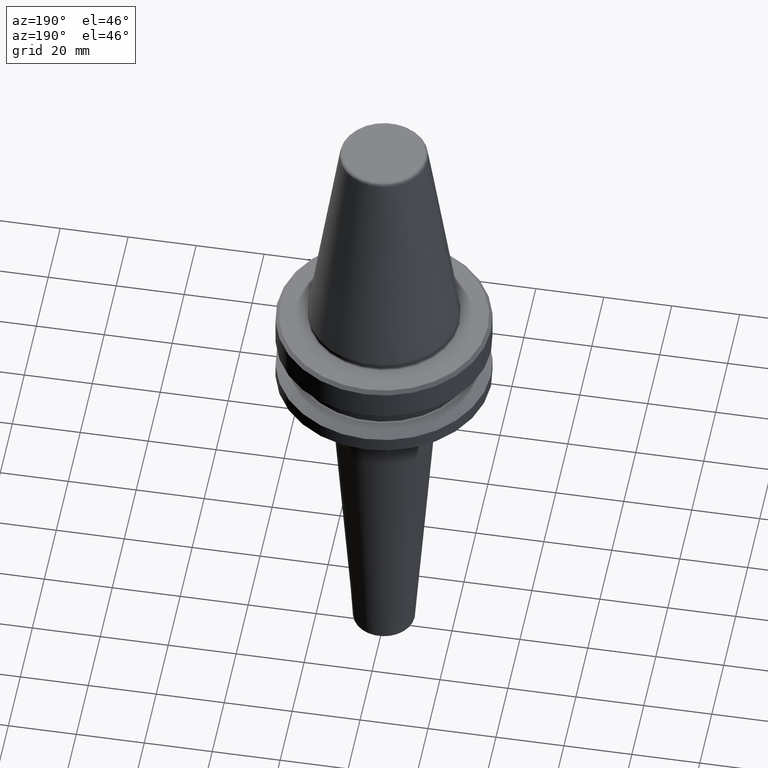
[diagram: clean part render]
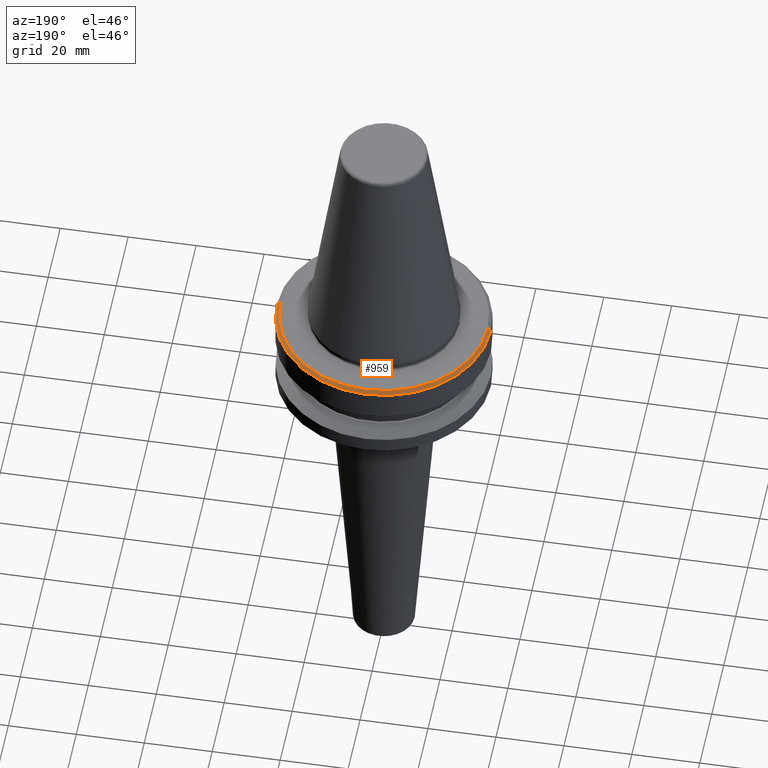
[diagram: same view with one face highlighted and labeled with its STEP entity id]
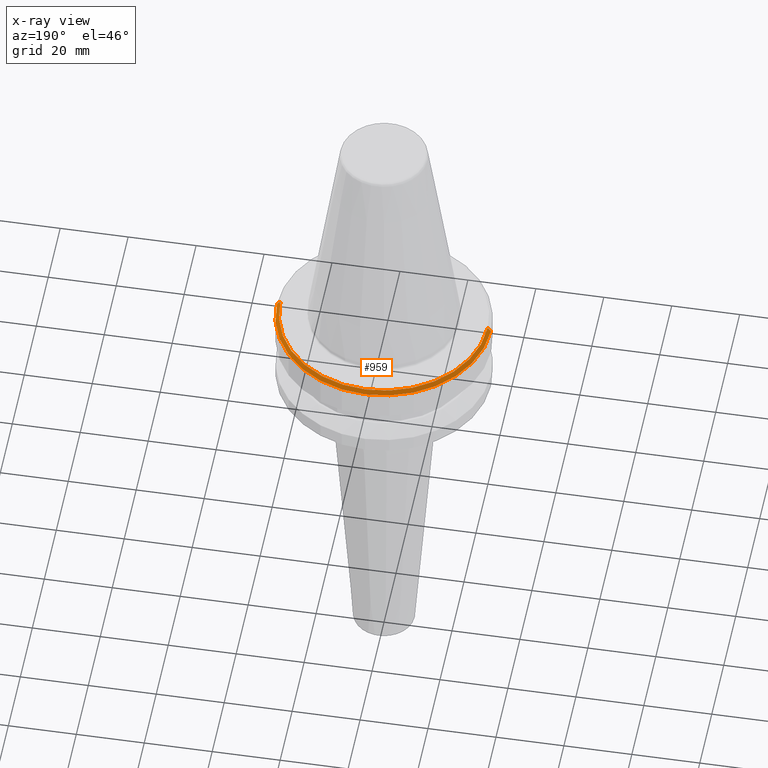
[diagram: x-ray of the same camera — body ghosted, the highlighted face saturated]
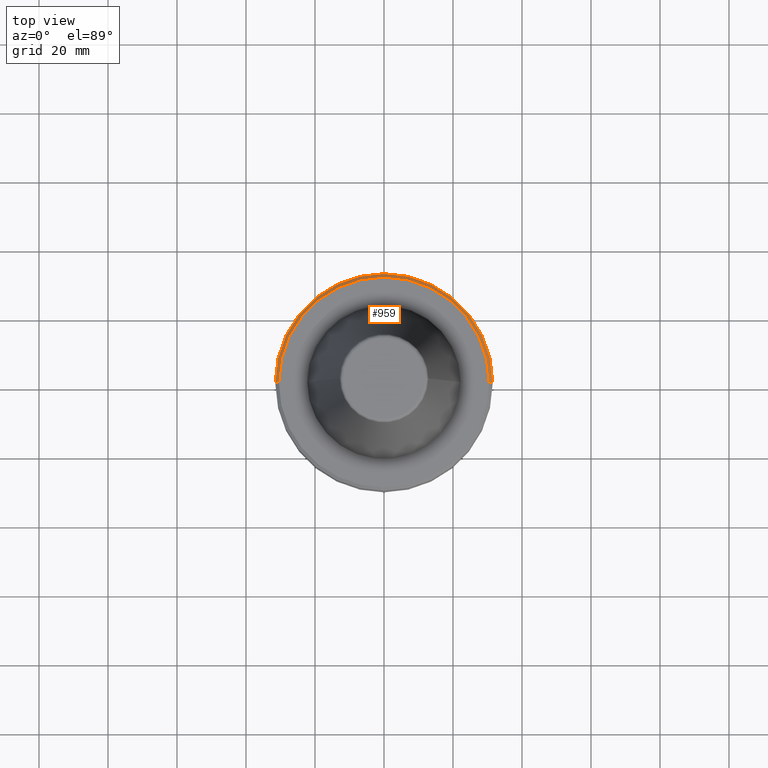
[diagram: same view with one face highlighted and labeled with its STEP entity id]
A machine part, auxiliary view. The second image highlights one B-rep face of the part: STEP entity #959.
The next image is the same camera in x-ray: the body ghosted, the highlighted face saturated — about 0% of this face is hidden behind the body in this view.
A second angle (top view) of the same face is appended — the face is thin or edge-on in the first view.
In plain terms, the highlighted conical surface has half-angle 45 deg.
Its self-contained STEP definition (entity closure, byte-faithful):
#27 = AXIS2_PLACEMENT_3D ( 'NONE', #793, #607, #631 ) ;
#115 = VERTEX_POINT ( 'NONE', #884 ) ;
#127 = AXIS2_PLACEMENT_3D ( 'NONE', #285, #162, #683 ) ;
#133 = CARTESIAN_POINT ( 'NONE',  ( 31.50000000000008500, 0.0000000000000000000, -68.40000000000046000 ) ) ;
#136 = CONICAL_SURFACE ( 'NONE', #127, 30.49999999999997200, 0.7853981633974482800 ) ;
#162 = DIRECTION ( 'NONE',  ( 0.0000000000000000000, 0.0000000000000000000, -1.000000000000000000 ) ) ;
#201 = EDGE_CURVE ( 'NONE', #115, #593, #984, .T. ) ;
#207 = EDGE_CURVE ( 'NONE', #593, #1020, #559, .T. ) ;
#285 = CARTESIAN_POINT ( 'NONE',  ( 0.0000000000000000000, 0.0000000000000000000, -67.40000000000034700 ) ) ;
#297 = CARTESIAN_POINT ( 'NONE',  ( 30.49999999999997200, 3.735172737399423600E-015, -67.40000000000034700 ) ) ;
#344 = VECTOR ( 'NONE', #805, 1000.000000000000000 ) ;
#345 = VECTOR ( 'NONE', #763, 1000.000000000000000 ) ;
#383 = DIRECTION ( 'NONE',  ( -0.0000000000000000000, -0.0000000000000000000, 1.000000000000000000 ) ) ;
#444 = CARTESIAN_POINT ( 'NONE',  ( -31.50000000000008500, 3.857637417314172900E-015, -68.40000000000046000 ) ) ;
#508 = EDGE_LOOP ( 'NONE', ( #823, #655, #864, #832 ) ) ;
#559 = LINE ( 'NONE', #847, #345 ) ;
#592 = FACE_OUTER_BOUND ( 'NONE', #508, .T. ) ;
#593 = VERTEX_POINT ( 'NONE', #935 ) ;
#604 = CIRCLE ( 'NONE', #27, 31.50000000000008500 ) ;
#607 = DIRECTION ( 'NONE',  ( -0.0000000000000000000, -0.0000000000000000000, 1.000000000000000000 ) ) ;
#631 = DIRECTION ( 'NONE',  ( 1.000000000000000000, 0.0000000000000000000, 0.0000000000000000000 ) ) ;
#648 = DIRECTION ( 'NONE',  ( 1.000000000000000000, 0.0000000000000000000, 0.0000000000000000000 ) ) ;
#655 = ORIENTED_EDGE ( 'NONE', *, *, #759, .T. ) ;
#683 = DIRECTION ( 'NONE',  ( -1.000000000000000000, 0.0000000000000000000, 0.0000000000000000000 ) ) ;
#722 = EDGE_CURVE ( 'NONE', #723, #1020, #604, .T. ) ;
#723 = VERTEX_POINT ( 'NONE', #133 ) ;
#759 = EDGE_CURVE ( 'NONE', #115, #723, #982, .T. ) ;
#763 = DIRECTION ( 'NONE',  ( -0.7071067811865474600, 0.0000000000000000000, -0.7071067811865475700 ) ) ;
#772 = CARTESIAN_POINT ( 'NONE',  ( 0.0000000000000000000, 0.0000000000000000000, -67.40000000000034700 ) ) ;
#793 = CARTESIAN_POINT ( 'NONE',  ( 0.0000000000000000000, 0.0000000000000000000, -68.40000000000046000 ) ) ;
#805 = DIRECTION ( 'NONE',  ( 0.7071067811865474600, 8.659560562354931600E-017, -0.7071067811865475700 ) ) ;
#823 = ORIENTED_EDGE ( 'NONE', *, *, #201, .F. ) ;
#832 = ORIENTED_EDGE ( 'NONE', *, *, #207, .F. ) ;
#847 = CARTESIAN_POINT ( 'NONE',  ( -30.49999999999997200, 0.0000000000000000000, -67.40000000000034700 ) ) ;
#864 = ORIENTED_EDGE ( 'NONE', *, *, #722, .T. ) ;
#884 = CARTESIAN_POINT ( 'NONE',  ( 30.49999999999997200, 3.796405077356798300E-015, -67.40000000000034700 ) ) ;
#935 = CARTESIAN_POINT ( 'NONE',  ( -30.49999999999997200, 0.0000000000000000000, -67.40000000000034700 ) ) ;
#959 = ADVANCED_FACE ( 'NONE', ( #592 ), #136, .T. ) ;
#964 = AXIS2_PLACEMENT_3D ( 'NONE', #772, #383, #648 ) ;
#982 = LINE ( 'NONE', #297, #344 ) ;
#984 = CIRCLE ( 'NONE', #964, 30.49999999999997200 ) ;
#1020 = VERTEX_POINT ( 'NONE', #444 ) ;